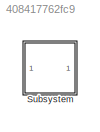
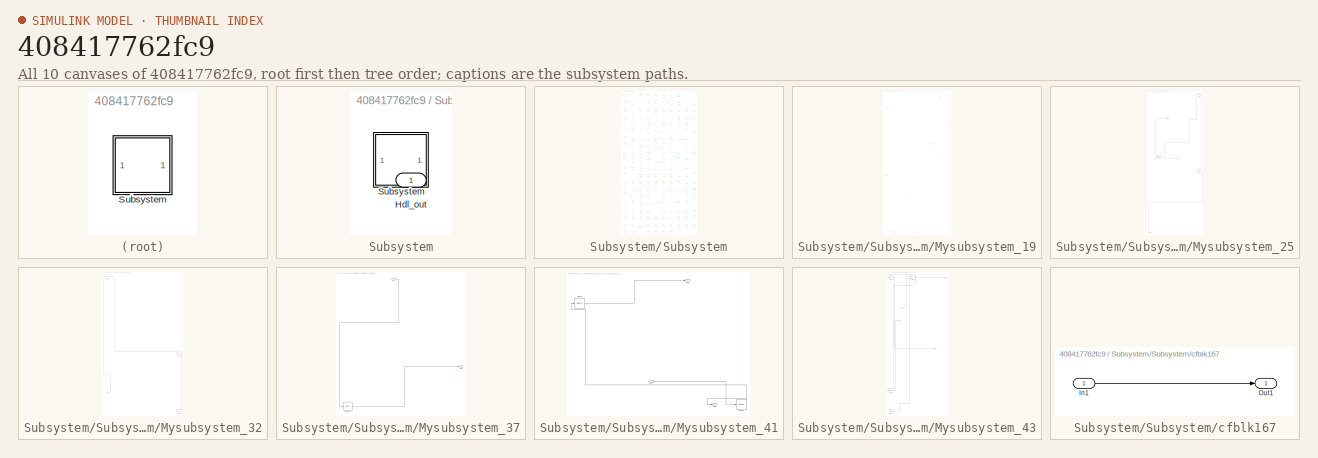
[diagram: thumbnail index - all 10 canvases of the model, root first then tree order]
MODEL slx_408417762fc9
KIND model
CONFIG AbsTol = auto
CONFIG EnableMultiTasking = off
CONFIG FixedStep = auto
CONFIG MaxStep = auto
CONFIG MinStep = auto
CONFIG RelTol = 1e-3
CONFIG SampleTimeConstraint = Unconstrained
CONFIG SolverName = VariableStepAuto
CONFIG StartTime = 0.0
CONFIG StopTime = 10.0
BLOCK [SubSystem] Subsystem
BLOCK [Outport] Subsystem/Hdl_out
  OutDataTypeStr = uint8
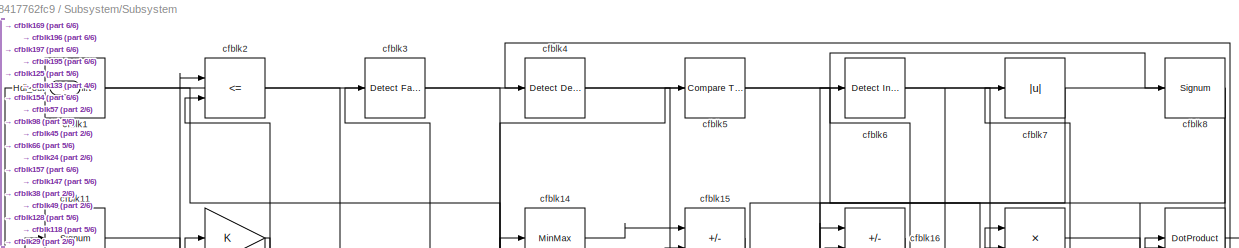
[diagram: Subsystem/Subsystem - part 1/6, full width, top band]
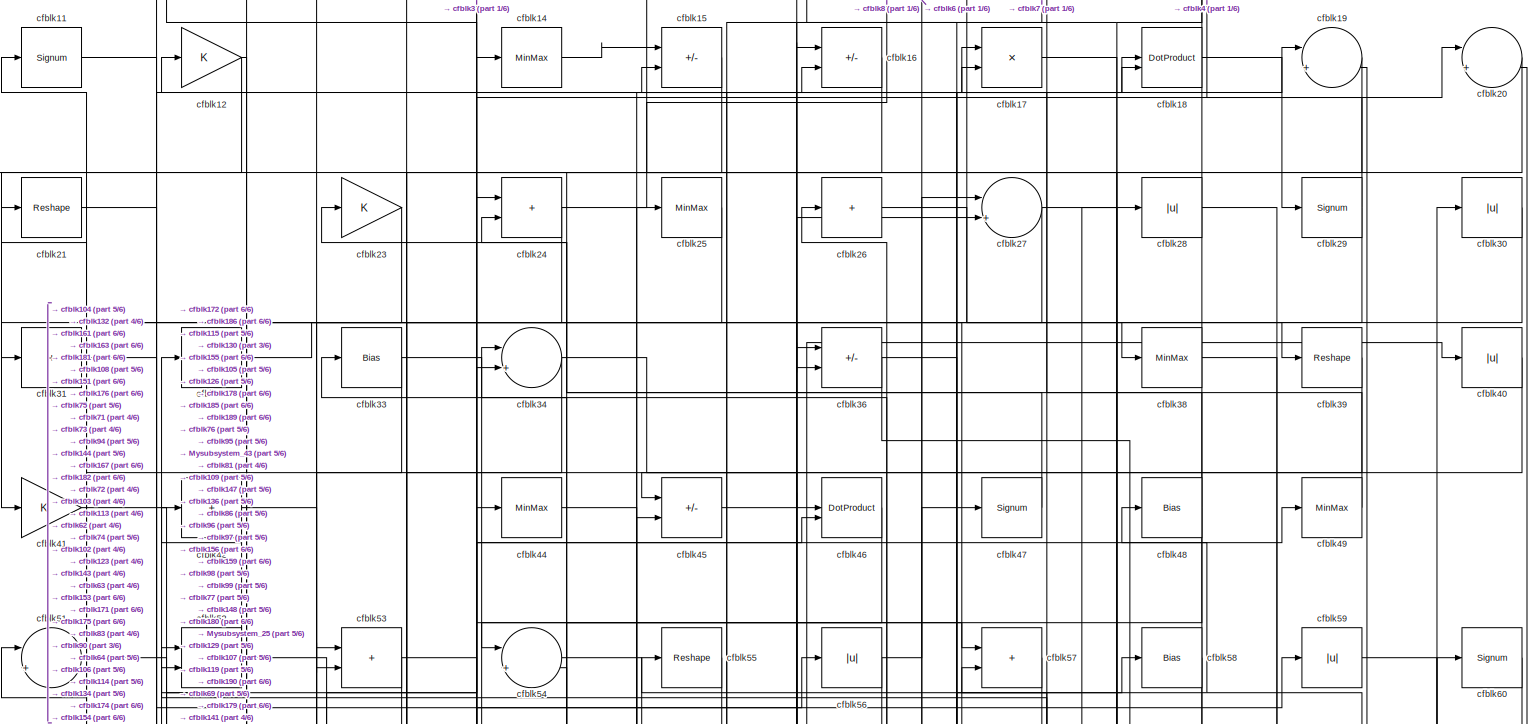
[diagram: Subsystem/Subsystem - part 2/6, full width, top band]
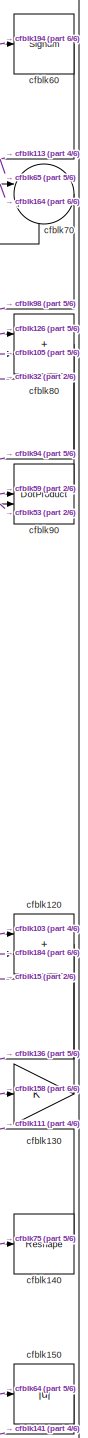
[diagram: Subsystem/Subsystem - part 3/6, middle right region]
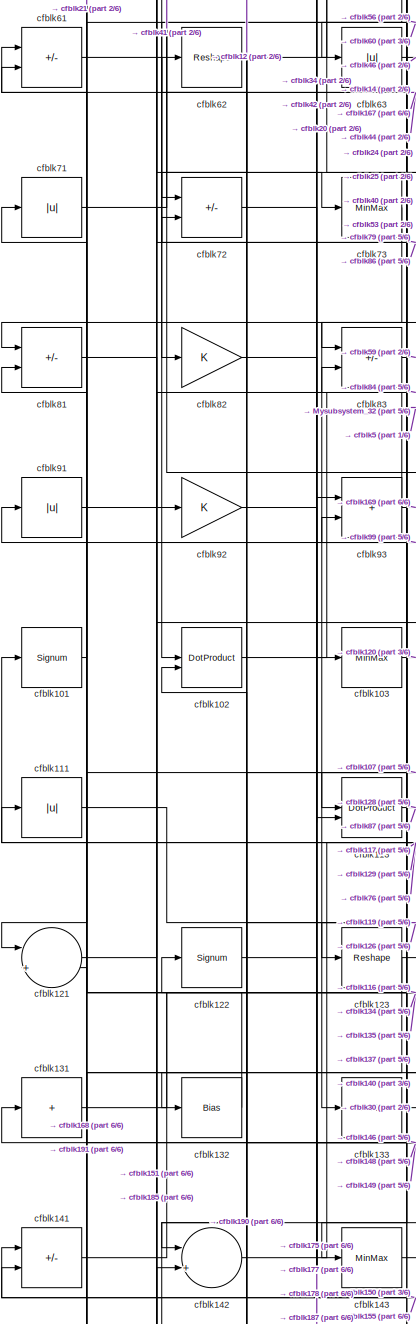
[diagram: Subsystem/Subsystem - part 4/6, middle left region]
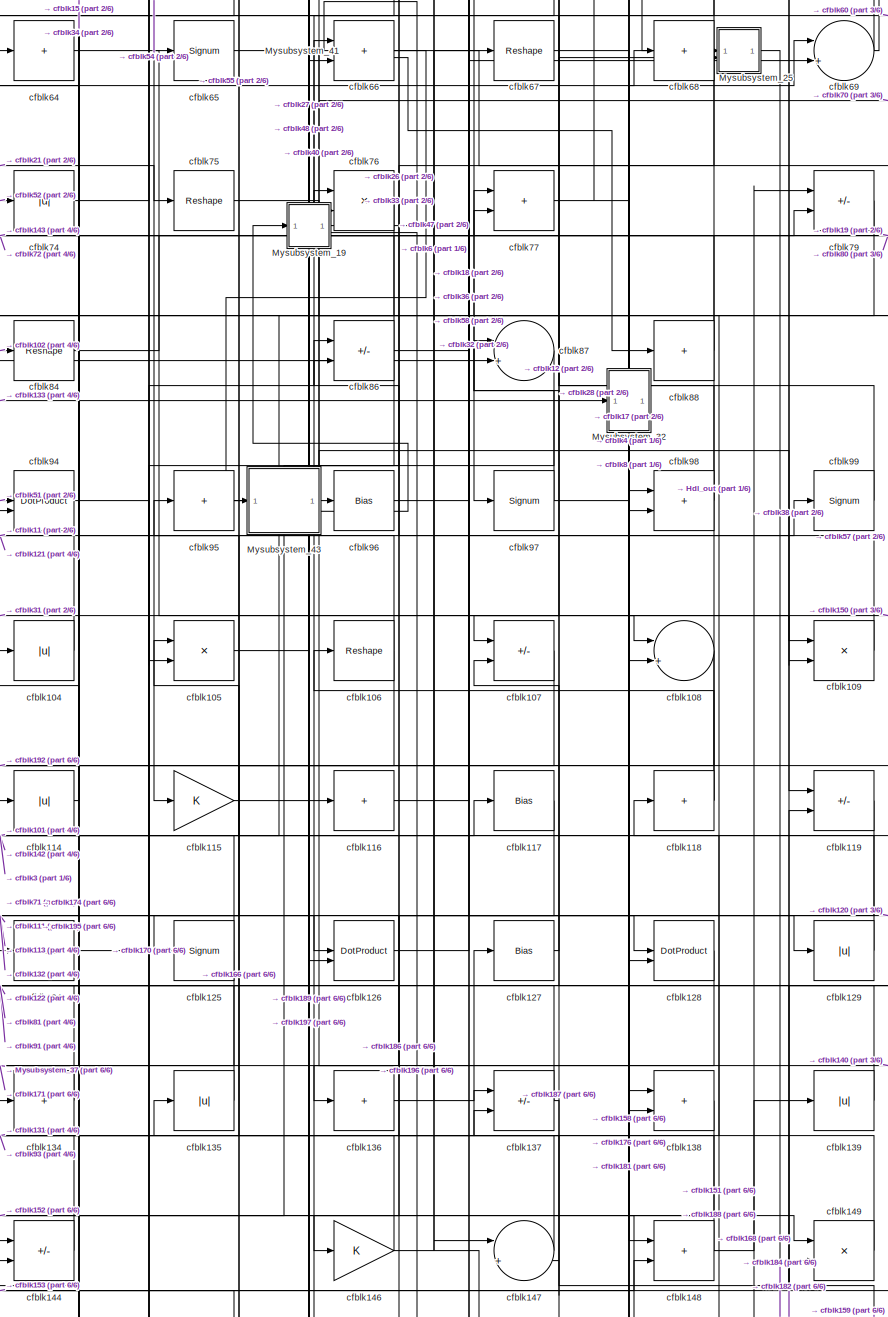
[diagram: Subsystem/Subsystem - part 5/6, central region]
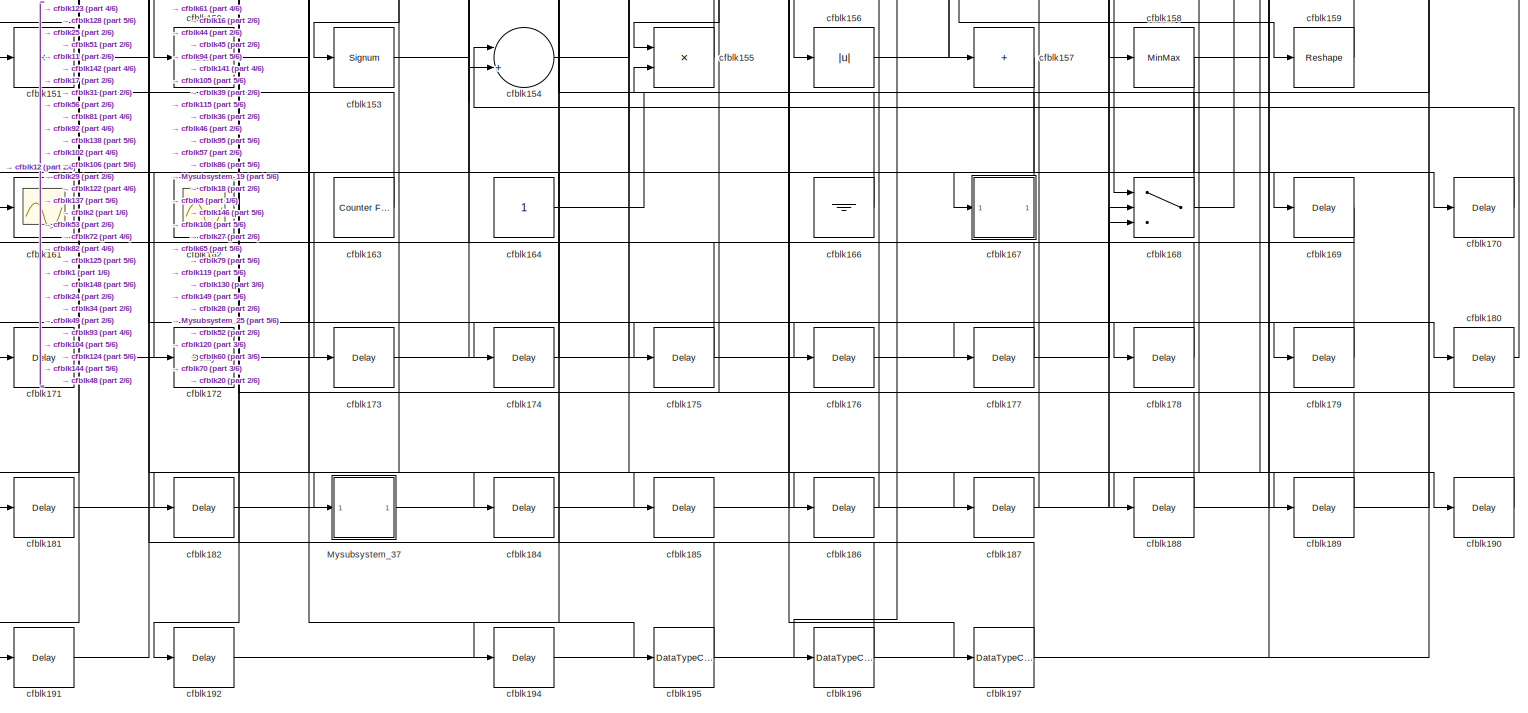
[diagram: Subsystem/Subsystem - part 6/6, full width, bottom band]
BLOCK [SubSystem] Subsystem/Subsystem
BLOCK [Outport] Subsystem/Subsystem/Hdl_out
  OutDataTypeStr = uint8
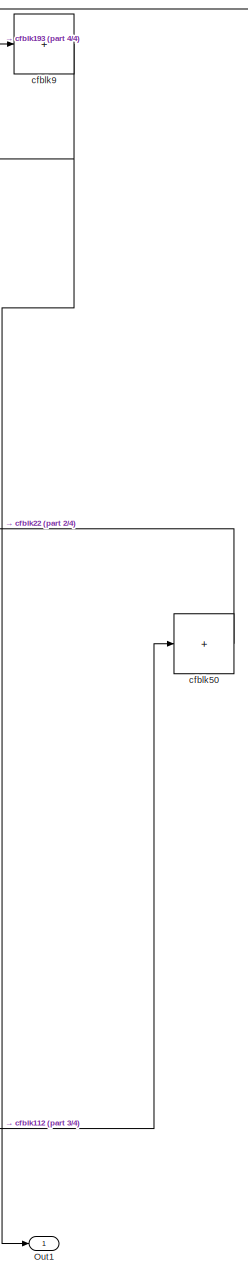
[diagram: Subsystem/Subsystem/Mysubsystem_19 - part 1/4, top right region]
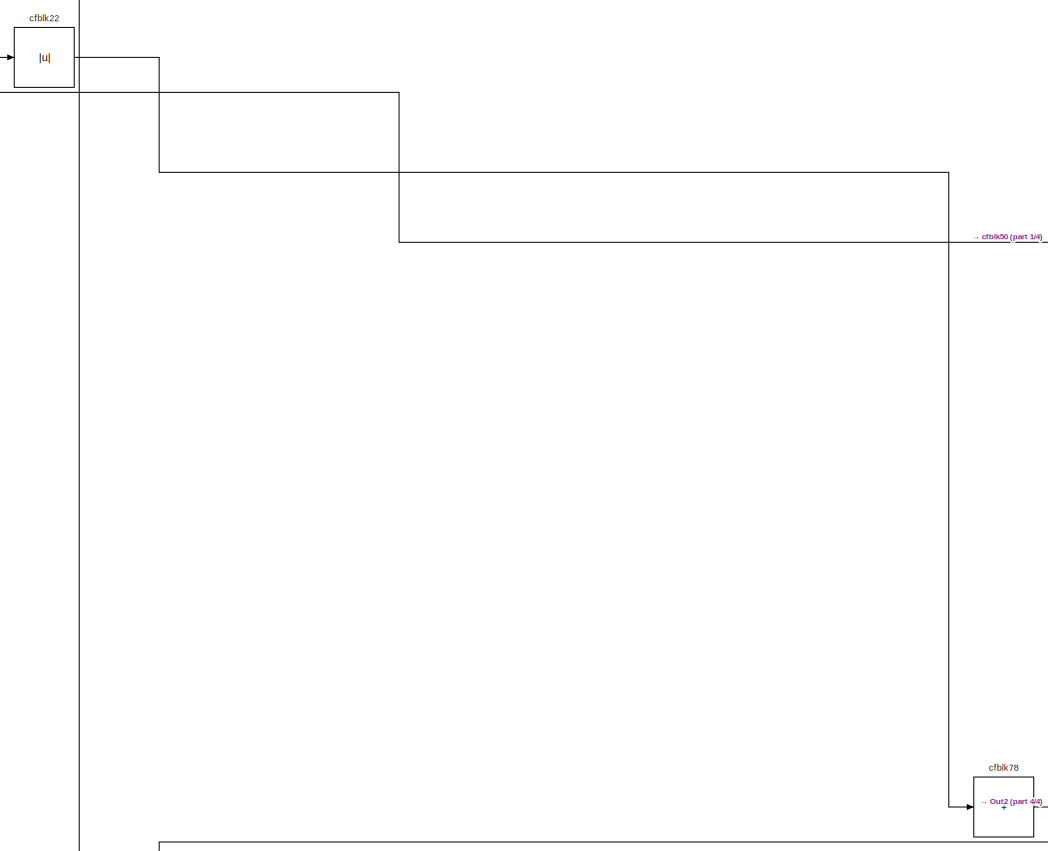
[diagram: Subsystem/Subsystem/Mysubsystem_19 - part 2/4, full width, top band]
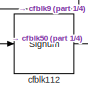
[diagram: Subsystem/Subsystem/Mysubsystem_19 - part 3/4, middle left region]
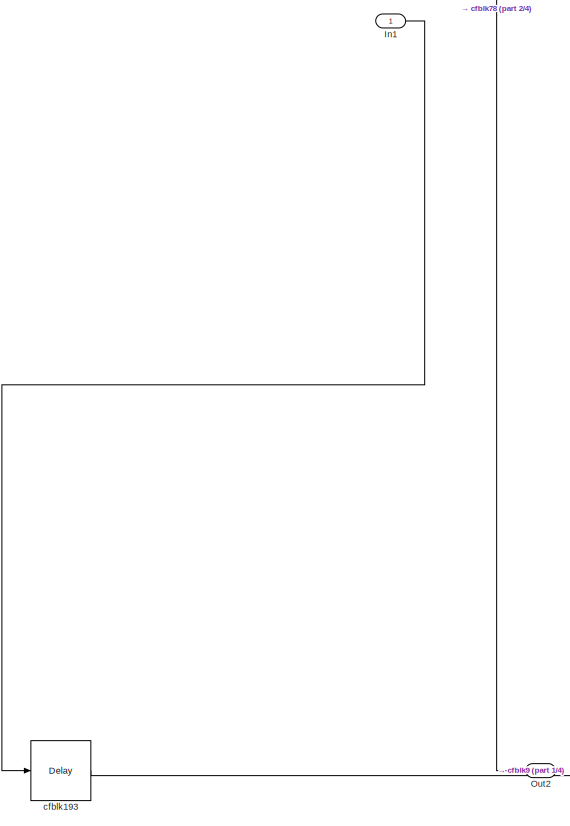
[diagram: Subsystem/Subsystem/Mysubsystem_19 - part 4/4, bottom left region]
BLOCK [SubSystem] Subsystem/Subsystem/Mysubsystem_19
  RTWFcnName = Mysubsystem_19
  RTWFcnNameOpts = User specified
  RTWFileNameOpts = Use function name
  RTWSystemCode = Reusable function
  TreatAsAtomicUnit = on
BLOCK [Inport] Subsystem/Subsystem/Mysubsystem_19/In1
BLOCK [Outport] Subsystem/Subsystem/Mysubsystem_19/Out1
BLOCK [Outport] Subsystem/Subsystem/Mysubsystem_19/Out2
  Port = 2
BLOCK [Signum] Subsystem/Subsystem/Mysubsystem_19/cfblk112
BLOCK [Delay] Subsystem/Subsystem/Mysubsystem_19/cfblk193
  InputPortMap = u0
  SampleTime = 1
BLOCK [Abs] Subsystem/Subsystem/Mysubsystem_19/cfblk22
  SaturateOnIntegerOverflow = off
BLOCK [Sum] Subsystem/Subsystem/Mysubsystem_19/cfblk50
  IconShape = rectangular
  Inputs = +
BLOCK [Sum] Subsystem/Subsystem/Mysubsystem_19/cfblk78
  IconShape = rectangular
  Inputs = +
BLOCK [Sum] Subsystem/Subsystem/Mysubsystem_19/cfblk9
  IconShape = rectangular
  Inputs = +
BLOCK [SubSystem] Subsystem/Subsystem/Mysubsystem_25
  RTWFcnName = Mysubsystem_25
  RTWFcnNameOpts = User specified
  RTWFileNameOpts = Use function name
  RTWSystemCode = Reusable function
  TreatAsAtomicUnit = on
BLOCK [Inport] Subsystem/Subsystem/Mysubsystem_25/In1
BLOCK [Inport] Subsystem/Subsystem/Mysubsystem_25/In2
  Port = 2
BLOCK [Outport] Subsystem/Subsystem/Mysubsystem_25/Out1
BLOCK [Reshape] Subsystem/Subsystem/Mysubsystem_25/cfblk10
BLOCK [Abs] Subsystem/Subsystem/Mysubsystem_25/cfblk110
  SaturateOnIntegerOverflow = off
BLOCK [DotProduct] Subsystem/Subsystem/Mysubsystem_25/cfblk85
  OutDataTypeStr = Inherit: Inherit via internal rule
BLOCK [SubSystem] Subsystem/Subsystem/Mysubsystem_32
  RTWFcnName = Mysubsystem_32
  RTWFcnNameOpts = User specified
  RTWFileNameOpts = Use function name
  RTWSystemCode = Reusable function
  TreatAsAtomicUnit = on
BLOCK [Inport] Subsystem/Subsystem/Mysubsystem_32/In1
BLOCK [Abs] Subsystem/Subsystem/Mysubsystem_32/cfblk100
  SaturateOnIntegerOverflow = off
BLOCK [Abs] Subsystem/Subsystem/Mysubsystem_32/cfblk13
  SaturateOnIntegerOverflow = off
BLOCK [Display] Subsystem/Subsystem/Mysubsystem_32/cfblk160
  Decimation = 1
BLOCK [SubSystem] Subsystem/Subsystem/Mysubsystem_37
  RTWFcnName = Mysubsystem_37
  RTWFcnNameOpts = User specified
  RTWFileNameOpts = Use function name
  RTWSystemCode = Reusable function
  TreatAsAtomicUnit = on
BLOCK [Inport] Subsystem/Subsystem/Mysubsystem_37/In1
BLOCK [Outport] Subsystem/Subsystem/Mysubsystem_37/Out1
BLOCK [Delay] Subsystem/Subsystem/Mysubsystem_37/cfblk183
  InputPortMap = u0
  SampleTime = 1
BLOCK [SubSystem] Subsystem/Subsystem/Mysubsystem_41
  RTWFcnName = Mysubsystem_41
  RTWFcnNameOpts = User specified
  RTWFileNameOpts = Use function name
  RTWSystemCode = Reusable function
  TreatAsAtomicUnit = on
BLOCK [Inport] Subsystem/Subsystem/Mysubsystem_41/In1
BLOCK [Outport] Subsystem/Subsystem/Mysubsystem_41/Out1
BLOCK [Outport] Subsystem/Subsystem/Mysubsystem_41/Out2
  Port = 2
BLOCK [Signum] Subsystem/Subsystem/Mysubsystem_41/cfblk43
BLOCK [Signum] Subsystem/Subsystem/Mysubsystem_41/cfblk89
BLOCK [SubSystem] Subsystem/Subsystem/Mysubsystem_43
  RTWFcnName = Mysubsystem_43
  RTWFcnNameOpts = User specified
  RTWFileNameOpts = Use function name
  RTWSystemCode = Reusable function
  TreatAsAtomicUnit = on
BLOCK [Inport] Subsystem/Subsystem/Mysubsystem_43/In1
BLOCK [Outport] Subsystem/Subsystem/Mysubsystem_43/Out1
BLOCK [Outport] Subsystem/Subsystem/Mysubsystem_43/Out2
  Port = 2
BLOCK [Outport] Subsystem/Subsystem/Mysubsystem_43/Out3
  Port = 3
BLOCK [Reshape] Subsystem/Subsystem/Mysubsystem_43/cfblk145
BLOCK [Reference] Subsystem/Subsystem/Mysubsystem_43/cfblk165  REF=hdlsllib/Sources/Counter
Limited
  SourceBlock = hdlsllib/Sources/Counter\nLimited
  SourceType = Counter Limited
BLOCK [MinMax] Subsystem/Subsystem/Mysubsystem_43/cfblk35
BLOCK [Product] Subsystem/Subsystem/Mysubsystem_43/cfblk37
  Inputs = */
  RndMeth = Zero
  SaturateOnIntegerOverflow = on
BLOCK [Reference] Subsystem/Subsystem/cfblk1  REF=hdlsllib/Logic and Bit
Operations/Bit Shift
  SourceBlock = hdlsllib/Logic and Bit\nOperations/Bit Shift
  SourceType = Bit Shift
BLOCK [Signum] Subsystem/Subsystem/cfblk101
BLOCK [DotProduct] Subsystem/Subsystem/cfblk102
  OutDataTypeStr = uint8
BLOCK [MinMax] Subsystem/Subsystem/cfblk103
  OutDataTypeStr = uint8
BLOCK [Abs] Subsystem/Subsystem/cfblk104
  OutDataTypeStr = uint8
  SaturateOnIntegerOverflow = off
BLOCK [Product] Subsystem/Subsystem/cfblk105
  Inputs = */
  OutDataTypeStr = uint8
  RndMeth = Zero
  SaturateOnIntegerOverflow = on
BLOCK [Reshape] Subsystem/Subsystem/cfblk106
BLOCK [Sum] Subsystem/Subsystem/cfblk107
  IconShape = rectangular
  Inputs = +-
  OutDataTypeStr = uint8
BLOCK [Sum] Subsystem/Subsystem/cfblk108
  Inputs = |++
  OutDataTypeStr = uint8
BLOCK [Product] Subsystem/Subsystem/cfblk109
  Inputs = */
  OutDataTypeStr = uint8
  RndMeth = Zero
  SaturateOnIntegerOverflow = on
BLOCK [Signum] Subsystem/Subsystem/cfblk11
BLOCK [Abs] Subsystem/Subsystem/cfblk111
  OutDataTypeStr = uint8
  SaturateOnIntegerOverflow = off
BLOCK [DotProduct] Subsystem/Subsystem/cfblk113
  OutDataTypeStr = uint8
BLOCK [Abs] Subsystem/Subsystem/cfblk114
  OutDataTypeStr = uint8
  SaturateOnIntegerOverflow = off
BLOCK [Gain] Subsystem/Subsystem/cfblk115
  OutDataTypeStr = uint8
BLOCK [Sum] Subsystem/Subsystem/cfblk116
  IconShape = rectangular
  Inputs = +
  OutDataTypeStr = uint8
BLOCK [Bias] Subsystem/Subsystem/cfblk117
  Bias = 0.0
  SaturateOnIntegerOverflow = off
BLOCK [Sum] Subsystem/Subsystem/cfblk118
  IconShape = rectangular
  Inputs = +
  OutDataTypeStr = uint8
BLOCK [Sum] Subsystem/Subsystem/cfblk119
  IconShape = rectangular
  Inputs = +-
  OutDataTypeStr = uint8
BLOCK [Gain] Subsystem/Subsystem/cfblk12
  OutDataTypeStr = uint8
BLOCK [Sum] Subsystem/Subsystem/cfblk120
  IconShape = rectangular
  OutDataTypeStr = uint8
BLOCK [Sum] Subsystem/Subsystem/cfblk121
  Inputs = |++
  OutDataTypeStr = uint8
BLOCK [Signum] Subsystem/Subsystem/cfblk122
BLOCK [Reshape] Subsystem/Subsystem/cfblk123
BLOCK [MinMax] Subsystem/Subsystem/cfblk124
  OutDataTypeStr = uint8
BLOCK [Signum] Subsystem/Subsystem/cfblk125
BLOCK [DotProduct] Subsystem/Subsystem/cfblk126
  OutDataTypeStr = uint8
BLOCK [Bias] Subsystem/Subsystem/cfblk127
  Bias = 0.0
  SaturateOnIntegerOverflow = off
BLOCK [DotProduct] Subsystem/Subsystem/cfblk128
  OutDataTypeStr = uint8
BLOCK [Abs] Subsystem/Subsystem/cfblk129
  OutDataTypeStr = uint8
  SaturateOnIntegerOverflow = off
BLOCK [Gain] Subsystem/Subsystem/cfblk130
  OutDataTypeStr = uint8
BLOCK [Sum] Subsystem/Subsystem/cfblk131
  IconShape = rectangular
  Inputs = +
  OutDataTypeStr = uint8
BLOCK [Bias] Subsystem/Subsystem/cfblk132
  Bias = 0.0
  SaturateOnIntegerOverflow = off
BLOCK [MinMax] Subsystem/Subsystem/cfblk133
  OutDataTypeStr = uint8
BLOCK [Sum] Subsystem/Subsystem/cfblk134
  IconShape = rectangular
  Inputs = +
  OutDataTypeStr = uint8
BLOCK [Abs] Subsystem/Subsystem/cfblk135
  OutDataTypeStr = uint8
  SaturateOnIntegerOverflow = off
BLOCK [Sum] Subsystem/Subsystem/cfblk136
  IconShape = rectangular
  Inputs = +
  OutDataTypeStr = uint8
BLOCK [Sum] Subsystem/Subsystem/cfblk137
  IconShape = rectangular
  Inputs = +-
  OutDataTypeStr = uint8
BLOCK [Sum] Subsystem/Subsystem/cfblk138
  IconShape = rectangular
  OutDataTypeStr = uint8
BLOCK [Abs] Subsystem/Subsystem/cfblk139
  OutDataTypeStr = uint8
  SaturateOnIntegerOverflow = off
BLOCK [MinMax] Subsystem/Subsystem/cfblk14
  OutDataTypeStr = uint8
BLOCK [Reshape] Subsystem/Subsystem/cfblk140
BLOCK [Sum] Subsystem/Subsystem/cfblk141
  IconShape = rectangular
  Inputs = +-
  OutDataTypeStr = uint8
BLOCK [Sum] Subsystem/Subsystem/cfblk142
  Inputs = |++
  OutDataTypeStr = uint8
BLOCK [MinMax] Subsystem/Subsystem/cfblk143
  OutDataTypeStr = uint8
BLOCK [Sum] Subsystem/Subsystem/cfblk144
  IconShape = rectangular
  Inputs = +-
  OutDataTypeStr = uint8
BLOCK [Gain] Subsystem/Subsystem/cfblk146
  OutDataTypeStr = uint8
BLOCK [Sum] Subsystem/Subsystem/cfblk147
  Inputs = |++
  OutDataTypeStr = uint8
BLOCK [Sum] Subsystem/Subsystem/cfblk148
  IconShape = rectangular
  OutDataTypeStr = uint8
BLOCK [Product] Subsystem/Subsystem/cfblk149
  Inputs = */
  OutDataTypeStr = uint8
  RndMeth = Zero
  SaturateOnIntegerOverflow = on
BLOCK [Sum] Subsystem/Subsystem/cfblk15
  IconShape = rectangular
  Inputs = +-
  OutDataTypeStr = uint8
BLOCK [Abs] Subsystem/Subsystem/cfblk150
  OutDataTypeStr = uint8
  SaturateOnIntegerOverflow = off
BLOCK [Sum] Subsystem/Subsystem/cfblk151
  IconShape = rectangular
  Inputs = +
  OutDataTypeStr = uint8
BLOCK [Bias] Subsystem/Subsystem/cfblk152
  Bias = 0.0
  SaturateOnIntegerOverflow = off
BLOCK [Signum] Subsystem/Subsystem/cfblk153
BLOCK [Sum] Subsystem/Subsystem/cfblk154
  Inputs = |++
  OutDataTypeStr = uint8
BLOCK [Product] Subsystem/Subsystem/cfblk155
  Inputs = */
  OutDataTypeStr = uint8
  RndMeth = Zero
  SaturateOnIntegerOverflow = on
BLOCK [Abs] Subsystem/Subsystem/cfblk156
  OutDataTypeStr = uint8
  SaturateOnIntegerOverflow = off
BLOCK [Sum] Subsystem/Subsystem/cfblk157
  IconShape = rectangular
  Inputs = +
  OutDataTypeStr = uint8
BLOCK [MinMax] Subsystem/Subsystem/cfblk158
  OutDataTypeStr = uint8
BLOCK [Reshape] Subsystem/Subsystem/cfblk159
BLOCK [Sum] Subsystem/Subsystem/cfblk16
  IconShape = rectangular
  Inputs = +-
  OutDataTypeStr = uint8
BLOCK [Scope] Subsystem/Subsystem/cfblk161
  Floating = off
  NumInputPorts = 1
  ScopeSpecificationString = Simulink.scopes.TimeScopeBlockCfg('CurrentConfiguration', extmgr.ConfigurationSet(extmgr.Configuration('Core','General UI',true),extmgr.Configuration('Core','Source UI',true),extmgr.Configuration('Sources','WiredSimulink',true,'DataLoggingVariableName','ScopeData1','DataLoggingSaveFormat','Array','DataLoggingLimitDataPoints',true,'DataLoggingDecimation','1'),extmgr.Configuration('Visuals','Time Do...<+868ch>
BLOCK [Scope] Subsystem/Subsystem/cfblk162
  Floating = on
  NumInputPorts = 1
  ScopeSpecificationString = Simulink.scopes.TimeScopeBlockCfg('CurrentConfiguration', extmgr.ConfigurationSet(extmgr.Configuration('Core','General UI',true,'FigureColor',[0.156862745098039 0.156862745098039 0.156862745098039]),extmgr.Configuration('Core','Source UI',true),extmgr.Configuration('Sources','WiredSimulink',true,'DataLoggingSaveFormat','StructureWithTime','DataLoggingLimitDataPoints',true,'DataLoggingDecimation','...<+2674ch>
BLOCK [Reference] Subsystem/Subsystem/cfblk163  REF=hdlsllib/Sources/Counter
Free-Running
  SourceBlock = hdlsllib/Sources/Counter\nFree-Running
  SourceType = Counter Free-Running
BLOCK [Constant] Subsystem/Subsystem/cfblk164
  OutDataTypeStr = uint8
  SampleTime = -1
BLOCK [Ground] Subsystem/Subsystem/cfblk166
BLOCK [SubSystem] Subsystem/Subsystem/cfblk167
  LibrarySourceBlock = hdlsllib/Ports &\nSubsystems/Subsystem
BLOCK [Inport] Subsystem/Subsystem/cfblk167/In1
BLOCK [Outport] Subsystem/Subsystem/cfblk167/Out1
BLOCK [Switch] Subsystem/Subsystem/cfblk168
  InputSameDT = off
  OutDataTypeStr = uint8
  SaturateOnIntegerOverflow = off
BLOCK [Delay] Subsystem/Subsystem/cfblk169
  InputPortMap = u0
  SampleTime = 1
BLOCK [Product] Subsystem/Subsystem/cfblk17
  Inputs = */
  OutDataTypeStr = uint8
  RndMeth = Zero
  SaturateOnIntegerOverflow = on
BLOCK [Delay] Subsystem/Subsystem/cfblk170
  InputPortMap = u0
  SampleTime = 1
BLOCK [Delay] Subsystem/Subsystem/cfblk171
  InputPortMap = u0
  SampleTime = 1
BLOCK [Delay] Subsystem/Subsystem/cfblk172
  InputPortMap = u0
  SampleTime = 1
BLOCK [Delay] Subsystem/Subsystem/cfblk173
  InputPortMap = u0
  SampleTime = 1
BLOCK [Delay] Subsystem/Subsystem/cfblk174
  InputPortMap = u0
  SampleTime = 1
BLOCK [Delay] Subsystem/Subsystem/cfblk175
  InputPortMap = u0
  SampleTime = 1
BLOCK [Delay] Subsystem/Subsystem/cfblk176
  InputPortMap = u0
  SampleTime = 1
BLOCK [Delay] Subsystem/Subsystem/cfblk177
  InputPortMap = u0
  SampleTime = 1
BLOCK [Delay] Subsystem/Subsystem/cfblk178
  InputPortMap = u0
  SampleTime = 1
BLOCK [Delay] Subsystem/Subsystem/cfblk179
  InputPortMap = u0
  SampleTime = 1
BLOCK [DotProduct] Subsystem/Subsystem/cfblk18
  OutDataTypeStr = uint8
BLOCK [Delay] Subsystem/Subsystem/cfblk180
  InputPortMap = u0
  SampleTime = 1
BLOCK [Delay] Subsystem/Subsystem/cfblk181
  InputPortMap = u0
  SampleTime = 1
BLOCK [Delay] Subsystem/Subsystem/cfblk182
  InputPortMap = u0
  SampleTime = 1
BLOCK [Delay] Subsystem/Subsystem/cfblk184
  InputPortMap = u0
  SampleTime = 1
BLOCK [Delay] Subsystem/Subsystem/cfblk185
  InputPortMap = u0
  SampleTime = 1
BLOCK [Delay] Subsystem/Subsystem/cfblk186
  InputPortMap = u0
  SampleTime = 1
BLOCK [Delay] Subsystem/Subsystem/cfblk187
  InputPortMap = u0
  SampleTime = 1
BLOCK [Delay] Subsystem/Subsystem/cfblk188
  InputPortMap = u0
  SampleTime = 1
BLOCK [Delay] Subsystem/Subsystem/cfblk189
  InputPortMap = u0
  SampleTime = 1
BLOCK [Sum] Subsystem/Subsystem/cfblk19
  Inputs = |++
  OutDataTypeStr = uint8
BLOCK [Delay] Subsystem/Subsystem/cfblk190
  InputPortMap = u0
  SampleTime = 1
BLOCK [Delay] Subsystem/Subsystem/cfblk191
  InputPortMap = u0
  SampleTime = 1
BLOCK [Delay] Subsystem/Subsystem/cfblk192
  InputPortMap = u0
  SampleTime = 1
BLOCK [Delay] Subsystem/Subsystem/cfblk194
  InputPortMap = u0
  SampleTime = 1
BLOCK [DataTypeConversion] Subsystem/Subsystem/cfblk195
  OutDataTypeStr = uint8
  RndMeth = Floor
  SaturateOnIntegerOverflow = off
BLOCK [DataTypeConversion] Subsystem/Subsystem/cfblk196
  OutDataTypeStr = uint8
  RndMeth = Floor
  SaturateOnIntegerOverflow = off
BLOCK [DataTypeConversion] Subsystem/Subsystem/cfblk197
  OutDataTypeStr = uint8
  RndMeth = Floor
  SaturateOnIntegerOverflow = off
BLOCK [RelationalOperator] Subsystem/Subsystem/cfblk2
  InputSameDT = off
  Operator = <=
  OutDataTypeStr = boolean
BLOCK [Sum] Subsystem/Subsystem/cfblk20
  Inputs = |++
  OutDataTypeStr = uint8
BLOCK [Reshape] Subsystem/Subsystem/cfblk21
BLOCK [Gain] Subsystem/Subsystem/cfblk23
  OutDataTypeStr = uint8
BLOCK [Sum] Subsystem/Subsystem/cfblk24
  IconShape = rectangular
  OutDataTypeStr = uint8
BLOCK [MinMax] Subsystem/Subsystem/cfblk25
  OutDataTypeStr = uint8
BLOCK [Sum] Subsystem/Subsystem/cfblk26
  IconShape = rectangular
  Inputs = +
  OutDataTypeStr = uint8
BLOCK [Sum] Subsystem/Subsystem/cfblk27
  Inputs = |++
  OutDataTypeStr = uint8
BLOCK [Abs] Subsystem/Subsystem/cfblk28
  OutDataTypeStr = uint8
  SaturateOnIntegerOverflow = off
BLOCK [Signum] Subsystem/Subsystem/cfblk29
BLOCK [Reference] Subsystem/Subsystem/cfblk3  REF=hdlsllib/Logic and Bit
Operations/Detect Fall
Nonpositive
  SourceBlock = hdlsllib/Logic and Bit\nOperations/Detect Fall\nNonpositive
  SourceType = Detect Fall Nonpositive
BLOCK [Abs] Subsystem/Subsystem/cfblk30
  OutDataTypeStr = uint8
  SaturateOnIntegerOverflow = off
BLOCK [Sum] Subsystem/Subsystem/cfblk31
  IconShape = rectangular
  Inputs = +
  OutDataTypeStr = uint8
BLOCK [Bias] Subsystem/Subsystem/cfblk32
  Bias = 0.0
  SaturateOnIntegerOverflow = off
BLOCK [Bias] Subsystem/Subsystem/cfblk33
  Bias = 0.0
  SaturateOnIntegerOverflow = off
BLOCK [Sum] Subsystem/Subsystem/cfblk34
  Inputs = |++
  OutDataTypeStr = uint8
BLOCK [Sum] Subsystem/Subsystem/cfblk36
  IconShape = rectangular
  Inputs = +-
  OutDataTypeStr = uint8
BLOCK [MinMax] Subsystem/Subsystem/cfblk38
  OutDataTypeStr = uint8
BLOCK [Reshape] Subsystem/Subsystem/cfblk39
BLOCK [Reference] Subsystem/Subsystem/cfblk4  REF=simulink/Logic and Bit
Operations/Detect
Decrease
  LibrarySourceBlock = hdlsllib/Logic and Bit\nOperations/Detect\nDecrease
  SourceBlock = simulink/Logic and Bit\nOperations/Detect\nDecrease
  SourceType = Detect Decrease
BLOCK [Abs] Subsystem/Subsystem/cfblk40
  OutDataTypeStr = uint8
  SaturateOnIntegerOverflow = off
BLOCK [Gain] Subsystem/Subsystem/cfblk41
  OutDataTypeStr = uint8
BLOCK [Sum] Subsystem/Subsystem/cfblk42
  IconShape = rectangular
  Inputs = +
  OutDataTypeStr = uint8
BLOCK [MinMax] Subsystem/Subsystem/cfblk44
  OutDataTypeStr = uint8
BLOCK [Sum] Subsystem/Subsystem/cfblk45
  IconShape = rectangular
  Inputs = +-
  OutDataTypeStr = uint8
BLOCK [DotProduct] Subsystem/Subsystem/cfblk46
  OutDataTypeStr = uint8
BLOCK [Signum] Subsystem/Subsystem/cfblk47
BLOCK [Bias] Subsystem/Subsystem/cfblk48
  Bias = 0.0
  SaturateOnIntegerOverflow = off
BLOCK [MinMax] Subsystem/Subsystem/cfblk49
  OutDataTypeStr = uint8
BLOCK [Reference] Subsystem/Subsystem/cfblk5  REF=hdlsllib/Logic and Bit
Operations/Compare
To Constant
  SourceBlock = hdlsllib/Logic and Bit\nOperations/Compare\nTo Constant
  SourceType = Compare To Constant
BLOCK [Sum] Subsystem/Subsystem/cfblk51
  Inputs = |++
  OutDataTypeStr = uint8
BLOCK [Sum] Subsystem/Subsystem/cfblk52
  IconShape = rectangular
  OutDataTypeStr = uint8
BLOCK [Sum] Subsystem/Subsystem/cfblk53
  IconShape = rectangular
  OutDataTypeStr = uint8
BLOCK [Sum] Subsystem/Subsystem/cfblk54
  Inputs = |++
  OutDataTypeStr = uint8
BLOCK [Reshape] Subsystem/Subsystem/cfblk55
BLOCK [Abs] Subsystem/Subsystem/cfblk56
  OutDataTypeStr = uint8
  SaturateOnIntegerOverflow = off
BLOCK [Sum] Subsystem/Subsystem/cfblk57
  IconShape = rectangular
  OutDataTypeStr = uint8
BLOCK [Bias] Subsystem/Subsystem/cfblk58
  Bias = 0.0
  SaturateOnIntegerOverflow = off
BLOCK [Abs] Subsystem/Subsystem/cfblk59
  OutDataTypeStr = uint8
  SaturateOnIntegerOverflow = off
BLOCK [Reference] Subsystem/Subsystem/cfblk6  REF=simulink/Logic and Bit
Operations/Detect
Increase
  LibrarySourceBlock = hdlsllib/Logic and Bit\nOperations/Detect\nIncrease
  SourceBlock = simulink/Logic and Bit\nOperations/Detect\nIncrease
  SourceType = Detect Increase
BLOCK [Signum] Subsystem/Subsystem/cfblk60
BLOCK [Sum] Subsystem/Subsystem/cfblk61
  IconShape = rectangular
  Inputs = +-
  OutDataTypeStr = uint8
BLOCK [Reshape] Subsystem/Subsystem/cfblk62
BLOCK [Abs] Subsystem/Subsystem/cfblk63
  OutDataTypeStr = uint8
  SaturateOnIntegerOverflow = off
BLOCK [Sum] Subsystem/Subsystem/cfblk64
  IconShape = rectangular
  Inputs = +
  OutDataTypeStr = uint8
BLOCK [Signum] Subsystem/Subsystem/cfblk65
BLOCK [Sum] Subsystem/Subsystem/cfblk66
  IconShape = rectangular
  OutDataTypeStr = uint8
BLOCK [Reshape] Subsystem/Subsystem/cfblk67
BLOCK [Sum] Subsystem/Subsystem/cfblk68
  IconShape = rectangular
  Inputs = +
  OutDataTypeStr = uint8
BLOCK [Sum] Subsystem/Subsystem/cfblk69
  Inputs = |++
  OutDataTypeStr = uint8
BLOCK [Abs] Subsystem/Subsystem/cfblk7
  OutDataTypeStr = uint8
  SaturateOnIntegerOverflow = off
BLOCK [Sum] Subsystem/Subsystem/cfblk70
  Inputs = |++
  OutDataTypeStr = uint8
BLOCK [Abs] Subsystem/Subsystem/cfblk71
  OutDataTypeStr = uint8
  SaturateOnIntegerOverflow = off
BLOCK [Sum] Subsystem/Subsystem/cfblk72
  IconShape = rectangular
  Inputs = +-
  OutDataTypeStr = uint8
BLOCK [MinMax] Subsystem/Subsystem/cfblk73
  OutDataTypeStr = uint8
BLOCK [Abs] Subsystem/Subsystem/cfblk74
  OutDataTypeStr = uint8
  SaturateOnIntegerOverflow = off
BLOCK [Reshape] Subsystem/Subsystem/cfblk75
BLOCK [Product] Subsystem/Subsystem/cfblk76
  Inputs = */
  OutDataTypeStr = uint8
  RndMeth = Zero
  SaturateOnIntegerOverflow = on
BLOCK [Sum] Subsystem/Subsystem/cfblk77
  IconShape = rectangular
  OutDataTypeStr = uint8
BLOCK [Sum] Subsystem/Subsystem/cfblk79
  IconShape = rectangular
  Inputs = +-
  OutDataTypeStr = uint8
BLOCK [Signum] Subsystem/Subsystem/cfblk8
BLOCK [Sum] Subsystem/Subsystem/cfblk80
  IconShape = rectangular
  OutDataTypeStr = uint8
BLOCK [Sum] Subsystem/Subsystem/cfblk81
  IconShape = rectangular
  Inputs = +-
  OutDataTypeStr = uint8
BLOCK [Gain] Subsystem/Subsystem/cfblk82
  OutDataTypeStr = uint8
BLOCK [Sum] Subsystem/Subsystem/cfblk83
  IconShape = rectangular
  Inputs = +-
  OutDataTypeStr = uint8
BLOCK [Reshape] Subsystem/Subsystem/cfblk84
BLOCK [Sum] Subsystem/Subsystem/cfblk86
  IconShape = rectangular
  Inputs = +-
  OutDataTypeStr = uint8
BLOCK [Sum] Subsystem/Subsystem/cfblk87
  Inputs = |++
  OutDataTypeStr = uint8
BLOCK [Sum] Subsystem/Subsystem/cfblk88
  IconShape = rectangular
  Inputs = +
  OutDataTypeStr = uint8
BLOCK [DotProduct] Subsystem/Subsystem/cfblk90
  OutDataTypeStr = uint8
BLOCK [Abs] Subsystem/Subsystem/cfblk91
  OutDataTypeStr = uint8
  SaturateOnIntegerOverflow = off
BLOCK [Gain] Subsystem/Subsystem/cfblk92
  OutDataTypeStr = uint8
BLOCK [Sum] Subsystem/Subsystem/cfblk93
  IconShape = rectangular
  OutDataTypeStr = uint8
BLOCK [DotProduct] Subsystem/Subsystem/cfblk94
  OutDataTypeStr = uint8
BLOCK [Sum] Subsystem/Subsystem/cfblk95
  IconShape = rectangular
  Inputs = +
  OutDataTypeStr = uint8
BLOCK [Bias] Subsystem/Subsystem/cfblk96
  Bias = 0.0
  SaturateOnIntegerOverflow = off
BLOCK [Signum] Subsystem/Subsystem/cfblk97
BLOCK [Sum] Subsystem/Subsystem/cfblk98
  IconShape = rectangular
  OutDataTypeStr = uint8
BLOCK [Signum] Subsystem/Subsystem/cfblk99
LINE Subsystem/Subsystem/Mysubsystem_19/In1:1 -> Subsystem/Subsystem/Mysubsystem_19/cfblk193:1
LINE Subsystem/Subsystem/Mysubsystem_19/cfblk112:1 -> Subsystem/Subsystem/Mysubsystem_19/cfblk50:1
LINE Subsystem/Subsystem/Mysubsystem_19/cfblk193:1 -> Subsystem/Subsystem/Mysubsystem_19/cfblk9:1
LINE Subsystem/Subsystem/Mysubsystem_19/cfblk22:1 -> Subsystem/Subsystem/Mysubsystem_19/cfblk78:1
LINE Subsystem/Subsystem/Mysubsystem_19/cfblk50:1 -> Subsystem/Subsystem/Mysubsystem_19/cfblk22:1
LINE Subsystem/Subsystem/Mysubsystem_19/cfblk78:1 -> Subsystem/Subsystem/Mysubsystem_19/Out2:1
NET Subsystem/Subsystem/Mysubsystem_19/cfblk9:1 -> Subsystem/Subsystem/Mysubsystem_19/Out1:1, Subsystem/Subsystem/Mysubsystem_19/cfblk112:1
LINE Subsystem/Subsystem/Mysubsystem_19:1 -> Subsystem/Subsystem/Mysubsystem_41:1
LINE Subsystem/Subsystem/Mysubsystem_19:2 -> Subsystem/Subsystem/cfblk196:1
LINE Subsystem/Subsystem/Mysubsystem_25/In1:1 -> Subsystem/Subsystem/Mysubsystem_25/cfblk85:1
LINE Subsystem/Subsystem/Mysubsystem_25/In2:1 -> Subsystem/Subsystem/Mysubsystem_25/cfblk85:2
LINE Subsystem/Subsystem/Mysubsystem_25/cfblk10:1 -> Subsystem/Subsystem/Mysubsystem_25/cfblk110:1
LINE Subsystem/Subsystem/Mysubsystem_25/cfblk110:1 -> Subsystem/Subsystem/Mysubsystem_25/Out1:1
LINE Subsystem/Subsystem/Mysubsystem_25/cfblk85:1 -> Subsystem/Subsystem/Mysubsystem_25/cfblk10:1
LINE Subsystem/Subsystem/Mysubsystem_25:1 -> Subsystem/Subsystem/cfblk184:1
LINE Subsystem/Subsystem/Mysubsystem_32/In1:1 -> Subsystem/Subsystem/Mysubsystem_32/cfblk13:1
LINE Subsystem/Subsystem/Mysubsystem_32/cfblk100:1 -> Subsystem/Subsystem/Mysubsystem_32/cfblk160:1
LINE Subsystem/Subsystem/Mysubsystem_32/cfblk13:1 -> Subsystem/Subsystem/Mysubsystem_32/cfblk100:1
LINE Subsystem/Subsystem/Mysubsystem_37/In1:1 -> Subsystem/Subsystem/Mysubsystem_37/cfblk183:1
LINE Subsystem/Subsystem/Mysubsystem_37/cfblk183:1 -> Subsystem/Subsystem/Mysubsystem_37/Out1:1
LINE Subsystem/Subsystem/Mysubsystem_37:1 -> Subsystem/Subsystem/cfblk168:3
LINE Subsystem/Subsystem/Mysubsystem_41/In1:1 -> Subsystem/Subsystem/Mysubsystem_41/cfblk89:1
LINE Subsystem/Subsystem/Mysubsystem_41/cfblk43:1 -> Subsystem/Subsystem/Mysubsystem_41/Out1:1
NET Subsystem/Subsystem/Mysubsystem_41/cfblk89:1 -> Subsystem/Subsystem/Mysubsystem_41/Out2:1, Subsystem/Subsystem/Mysubsystem_41/cfblk43:1
LINE Subsystem/Subsystem/Mysubsystem_41:1 -> Subsystem/Subsystem/Mysubsystem_43:1
LINE Subsystem/Subsystem/Mysubsystem_41:2 -> Subsystem/Subsystem/cfblk88:1
LINE Subsystem/Subsystem/Mysubsystem_43/In1:1 -> Subsystem/Subsystem/Mysubsystem_43/cfblk37:2
LINE Subsystem/Subsystem/Mysubsystem_43/cfblk145:1 -> Subsystem/Subsystem/Mysubsystem_43/Out2:1
LINE Subsystem/Subsystem/Mysubsystem_43/cfblk165:1 -> Subsystem/Subsystem/Mysubsystem_43/cfblk37:1
LINE Subsystem/Subsystem/Mysubsystem_43/cfblk35:1 -> Subsystem/Subsystem/Mysubsystem_43/Out3:1
NET Subsystem/Subsystem/Mysubsystem_43/cfblk37:1 -> Subsystem/Subsystem/Mysubsystem_43/Out1:1, Subsystem/Subsystem/Mysubsystem_43/cfblk145:1, Subsystem/Subsystem/Mysubsystem_43/cfblk35:1
LINE Subsystem/Subsystem/Mysubsystem_43:1 -> Subsystem/Subsystem/cfblk40:1
LINE Subsystem/Subsystem/Mysubsystem_43:2 -> Subsystem/Subsystem/Mysubsystem_19:1
LINE Subsystem/Subsystem/Mysubsystem_43:3 -> Subsystem/Subsystem/cfblk109:1
LINE Subsystem/Subsystem/cfblk101:1 -> Subsystem/Subsystem/cfblk61:2
LINE Subsystem/Subsystem/cfblk102:1 -> Subsystem/Subsystem/cfblk84:1
LINE Subsystem/Subsystem/cfblk103:1 -> Subsystem/Subsystem/cfblk120:1
LINE Subsystem/Subsystem/cfblk104:1 -> Subsystem/Subsystem/cfblk11:1
NET Subsystem/Subsystem/cfblk105:1 -> Subsystem/Subsystem/cfblk19:1, Subsystem/Subsystem/cfblk80:2
NET Subsystem/Subsystem/cfblk106:1 -> Subsystem/Subsystem/cfblk192:1, Subsystem/Subsystem/cfblk54:2
LINE Subsystem/Subsystem/cfblk107:1 -> Subsystem/Subsystem/cfblk121:1
LINE Subsystem/Subsystem/cfblk108:1 -> Subsystem/Subsystem/cfblk125:1
LINE Subsystem/Subsystem/cfblk109:1 -> Subsystem/Subsystem/cfblk33:1
LINE Subsystem/Subsystem/cfblk111:1 -> Subsystem/Subsystem/cfblk126:1
NET Subsystem/Subsystem/cfblk113:1 -> Subsystem/Subsystem/cfblk128:1, Subsystem/Subsystem/cfblk87:2
LINE Subsystem/Subsystem/cfblk114:1 -> Subsystem/Subsystem/cfblk34:1
LINE Subsystem/Subsystem/cfblk115:1 -> Subsystem/Subsystem/cfblk189:1
LINE Subsystem/Subsystem/cfblk116:1 -> Subsystem/Subsystem/cfblk69:2
LINE Subsystem/Subsystem/cfblk117:1 -> Subsystem/Subsystem/cfblk146:1
NET Subsystem/Subsystem/cfblk118:1 -> Subsystem/Subsystem/Hdl_out:1, Subsystem/Subsystem/cfblk106:1
NET Subsystem/Subsystem/cfblk119:1 -> Subsystem/Subsystem/cfblk132:1, Subsystem/Subsystem/cfblk142:1
LINE Subsystem/Subsystem/cfblk11:1 -> Subsystem/Subsystem/cfblk179:1
LINE Subsystem/Subsystem/cfblk120:1 -> Subsystem/Subsystem/cfblk136:1
LINE Subsystem/Subsystem/cfblk121:1 -> Subsystem/Subsystem/cfblk99:1
LINE Subsystem/Subsystem/cfblk122:1 -> Subsystem/Subsystem/cfblk175:1
NET Subsystem/Subsystem/cfblk123:1 -> Subsystem/Subsystem/cfblk168:1, Subsystem/Subsystem/cfblk191:1
LINE Subsystem/Subsystem/cfblk124:1 -> Subsystem/Subsystem/cfblk86:1
NET Subsystem/Subsystem/cfblk125:1 -> Subsystem/Subsystem/Mysubsystem_37:1, Subsystem/Subsystem/cfblk3:1
LINE Subsystem/Subsystem/cfblk126:1 -> Subsystem/Subsystem/cfblk80:1
LINE Subsystem/Subsystem/cfblk127:1 -> Subsystem/Subsystem/cfblk107:2
LINE Subsystem/Subsystem/cfblk128:1 -> Subsystem/Subsystem/cfblk171:1
LINE Subsystem/Subsystem/cfblk129:1 -> Subsystem/Subsystem/cfblk71:1
NET Subsystem/Subsystem/cfblk12:1 -> Subsystem/Subsystem/cfblk167:1, Subsystem/Subsystem/cfblk72:1
LINE Subsystem/Subsystem/cfblk130:1 -> Subsystem/Subsystem/cfblk15:2
LINE Subsystem/Subsystem/cfblk131:1 -> Subsystem/Subsystem/cfblk116:1
LINE Subsystem/Subsystem/cfblk132:1 -> Subsystem/Subsystem/cfblk21:1
NET Subsystem/Subsystem/cfblk133:1 -> Subsystem/Subsystem/Mysubsystem_32:1, Subsystem/Subsystem/cfblk5:1
LINE Subsystem/Subsystem/cfblk134:1 -> Subsystem/Subsystem/cfblk81:2
LINE Subsystem/Subsystem/cfblk135:1 -> Subsystem/Subsystem/cfblk91:1
NET Subsystem/Subsystem/cfblk136:1 -> Subsystem/Subsystem/cfblk127:1, Subsystem/Subsystem/cfblk47:1
NET Subsystem/Subsystem/cfblk137:1 -> Subsystem/Subsystem/cfblk122:1, Subsystem/Subsystem/cfblk147:2
LINE Subsystem/Subsystem/cfblk138:1 -> Subsystem/Subsystem/cfblk152:1
LINE Subsystem/Subsystem/cfblk139:1 -> Subsystem/Subsystem/cfblk87:1
LINE Subsystem/Subsystem/cfblk140:1 -> Subsystem/Subsystem/cfblk111:1
LINE Subsystem/Subsystem/cfblk141:1 -> Subsystem/Subsystem/cfblk30:1
LINE Subsystem/Subsystem/cfblk142:1 -> Subsystem/Subsystem/cfblk117:1
LINE Subsystem/Subsystem/cfblk143:1 -> Subsystem/Subsystem/cfblk76:1
LINE Subsystem/Subsystem/cfblk144:1 -> Subsystem/Subsystem/cfblk52:2
NET Subsystem/Subsystem/cfblk146:1 -> Subsystem/Subsystem/cfblk159:1, Subsystem/Subsystem/cfblk67:1, Subsystem/Subsystem/cfblk93:2
LINE Subsystem/Subsystem/cfblk147:1 -> Subsystem/Subsystem/cfblk26:1
NET Subsystem/Subsystem/cfblk148:1 -> Subsystem/Subsystem/cfblk121:2, Subsystem/Subsystem/cfblk139:1, Subsystem/Subsystem/cfblk95:1
NET Subsystem/Subsystem/cfblk149:1 -> Subsystem/Subsystem/cfblk118:1, Subsystem/Subsystem/cfblk131:1, Subsystem/Subsystem/cfblk135:1
LINE Subsystem/Subsystem/cfblk14:1 -> Subsystem/Subsystem/cfblk15:1
LINE Subsystem/Subsystem/cfblk150:1 -> Subsystem/Subsystem/cfblk141:1
NET Subsystem/Subsystem/cfblk151:1 -> Subsystem/Subsystem/cfblk17:2, Subsystem/Subsystem/cfblk56:1, Subsystem/Subsystem/cfblk92:1
LINE Subsystem/Subsystem/cfblk152:1 -> Subsystem/Subsystem/cfblk137:1
NET Subsystem/Subsystem/cfblk153:1 -> Subsystem/Subsystem/cfblk148:2, Subsystem/Subsystem/cfblk49:1
LINE Subsystem/Subsystem/cfblk154:1 -> Subsystem/Subsystem/cfblk16:2
LINE Subsystem/Subsystem/cfblk155:1 -> Subsystem/Subsystem/cfblk141:2
LINE Subsystem/Subsystem/cfblk156:1 -> Subsystem/Subsystem/cfblk18:1
NET Subsystem/Subsystem/cfblk157:1 -> Subsystem/Subsystem/cfblk172:1, Subsystem/Subsystem/cfblk173:1
NET Subsystem/Subsystem/cfblk158:1 -> Subsystem/Subsystem/cfblk130:1, Subsystem/Subsystem/cfblk194:1
NET Subsystem/Subsystem/cfblk159:1 -> Subsystem/Subsystem/Mysubsystem_25:2, Subsystem/Subsystem/cfblk52:1
LINE Subsystem/Subsystem/cfblk15:1 -> Subsystem/Subsystem/cfblk134:1
LINE Subsystem/Subsystem/cfblk163:1 -> Subsystem/Subsystem/cfblk51:1
LINE Subsystem/Subsystem/cfblk164:1 -> Subsystem/Subsystem/cfblk70:1
LINE Subsystem/Subsystem/cfblk166:1 -> Subsystem/Subsystem/cfblk105:1
LINE Subsystem/Subsystem/cfblk167/In1:1 -> Subsystem/Subsystem/cfblk167/Out1:1
LINE Subsystem/Subsystem/cfblk167:1 -> Subsystem/Subsystem/cfblk61:1
NET Subsystem/Subsystem/cfblk168:1 -> Subsystem/Subsystem/cfblk124:1, Subsystem/Subsystem/cfblk79:1
LINE Subsystem/Subsystem/cfblk169:1 -> Subsystem/Subsystem/cfblk1:1
LINE Subsystem/Subsystem/cfblk16:1 -> Subsystem/Subsystem/cfblk153:1
LINE Subsystem/Subsystem/cfblk170:1 -> Subsystem/Subsystem/cfblk154:1
LINE Subsystem/Subsystem/cfblk171:1 -> Subsystem/Subsystem/cfblk34:2
LINE Subsystem/Subsystem/cfblk172:1 -> Subsystem/Subsystem/cfblk45:2
LINE Subsystem/Subsystem/cfblk173:1 -> Subsystem/Subsystem/cfblk168:2
LINE Subsystem/Subsystem/cfblk174:1 -> Subsystem/Subsystem/cfblk144:2
LINE Subsystem/Subsystem/cfblk175:1 -> Subsystem/Subsystem/cfblk24:1
LINE Subsystem/Subsystem/cfblk176:1 -> Subsystem/Subsystem/cfblk138:1
LINE Subsystem/Subsystem/cfblk177:1 -> Subsystem/Subsystem/cfblk93:1
LINE Subsystem/Subsystem/cfblk178:1 -> Subsystem/Subsystem/cfblk16:1
LINE Subsystem/Subsystem/cfblk179:1 -> Subsystem/Subsystem/cfblk53:1
LINE Subsystem/Subsystem/cfblk17:1 -> Subsystem/Subsystem/cfblk148:1
LINE Subsystem/Subsystem/cfblk180:1 -> Subsystem/Subsystem/cfblk20:2
LINE Subsystem/Subsystem/cfblk181:1 -> Subsystem/Subsystem/cfblk108:2
LINE Subsystem/Subsystem/cfblk182:1 -> Subsystem/Subsystem/cfblk119:2
LINE Subsystem/Subsystem/cfblk184:1 -> Subsystem/Subsystem/cfblk120:2
LINE Subsystem/Subsystem/cfblk185:1 -> Subsystem/Subsystem/cfblk36:1
LINE Subsystem/Subsystem/cfblk186:1 -> Subsystem/Subsystem/cfblk86:2
LINE Subsystem/Subsystem/cfblk187:1 -> Subsystem/Subsystem/cfblk137:2
LINE Subsystem/Subsystem/cfblk188:1 -> Subsystem/Subsystem/cfblk155:2
LINE Subsystem/Subsystem/cfblk189:1 -> Subsystem/Subsystem/cfblk46:1
LINE Subsystem/Subsystem/cfblk18:1 -> Subsystem/Subsystem/cfblk29:1
LINE Subsystem/Subsystem/cfblk190:1 -> Subsystem/Subsystem/cfblk102:2
LINE Subsystem/Subsystem/cfblk191:1 -> Subsystem/Subsystem/cfblk142:2
LINE Subsystem/Subsystem/cfblk192:1 -> Subsystem/Subsystem/cfblk149:2
LINE Subsystem/Subsystem/cfblk194:1 -> Subsystem/Subsystem/cfblk60:1
LINE Subsystem/Subsystem/cfblk195:1 -> Subsystem/Subsystem/cfblk104:1
LINE Subsystem/Subsystem/cfblk196:1 -> Subsystem/Subsystem/cfblk2:1
LINE Subsystem/Subsystem/cfblk197:1 -> Subsystem/Subsystem/cfblk2:2
LINE Subsystem/Subsystem/cfblk19:1 -> Subsystem/Subsystem/cfblk41:1
LINE Subsystem/Subsystem/cfblk1:1 -> Subsystem/Subsystem/cfblk154:2
LINE Subsystem/Subsystem/cfblk20:1 -> Subsystem/Subsystem/cfblk123:1
LINE Subsystem/Subsystem/cfblk21:1 -> Subsystem/Subsystem/cfblk75:1
LINE Subsystem/Subsystem/cfblk23:1 -> Subsystem/Subsystem/cfblk53:2
NET Subsystem/Subsystem/cfblk24:1 -> Subsystem/Subsystem/cfblk63:1, Subsystem/Subsystem/cfblk8:1
NET Subsystem/Subsystem/cfblk25:1 -> Subsystem/Subsystem/cfblk143:1, Subsystem/Subsystem/cfblk161:1
LINE Subsystem/Subsystem/cfblk26:1 -> Subsystem/Subsystem/cfblk39:1
NET Subsystem/Subsystem/cfblk27:1 -> Subsystem/Subsystem/cfblk180:1, Subsystem/Subsystem/cfblk181:1
LINE Subsystem/Subsystem/cfblk28:1 -> Subsystem/Subsystem/cfblk190:1
NET Subsystem/Subsystem/cfblk29:1 -> Subsystem/Subsystem/cfblk182:1, Subsystem/Subsystem/cfblk4:1
LINE Subsystem/Subsystem/cfblk2:1 -> Subsystem/Subsystem/cfblk195:1
NET Subsystem/Subsystem/cfblk30:1 -> Subsystem/Subsystem/cfblk31:1, Subsystem/Subsystem/cfblk36:2
NET Subsystem/Subsystem/cfblk31:1 -> Subsystem/Subsystem/cfblk108:1, Subsystem/Subsystem/cfblk176:1
LINE Subsystem/Subsystem/cfblk32:1 -> Subsystem/Subsystem/cfblk97:1
NET Subsystem/Subsystem/cfblk33:1 -> Subsystem/Subsystem/cfblk51:2, Subsystem/Subsystem/cfblk64:1
NET Subsystem/Subsystem/cfblk34:1 -> Subsystem/Subsystem/cfblk113:2, Subsystem/Subsystem/cfblk126:2
NET Subsystem/Subsystem/cfblk36:1 -> Subsystem/Subsystem/Mysubsystem_25:1, Subsystem/Subsystem/cfblk129:1
LINE Subsystem/Subsystem/cfblk38:1 -> Subsystem/Subsystem/cfblk119:1
LINE Subsystem/Subsystem/cfblk39:1 -> Subsystem/Subsystem/cfblk155:1
LINE Subsystem/Subsystem/cfblk3:1 -> Subsystem/Subsystem/cfblk57:1
LINE Subsystem/Subsystem/cfblk40:1 -> Subsystem/Subsystem/cfblk83:1
LINE Subsystem/Subsystem/cfblk41:1 -> Subsystem/Subsystem/cfblk73:1
LINE Subsystem/Subsystem/cfblk42:1 -> Subsystem/Subsystem/cfblk103:1
LINE Subsystem/Subsystem/cfblk44:1 -> Subsystem/Subsystem/cfblk186:1
LINE Subsystem/Subsystem/cfblk45:1 -> Subsystem/Subsystem/cfblk6:1
LINE Subsystem/Subsystem/cfblk46:1 -> Subsystem/Subsystem/cfblk54:1
LINE Subsystem/Subsystem/cfblk47:1 -> Subsystem/Subsystem/cfblk23:1
NET Subsystem/Subsystem/cfblk48:1 -> Subsystem/Subsystem/cfblk174:1, Subsystem/Subsystem/cfblk24:2, Subsystem/Subsystem/cfblk76:2
LINE Subsystem/Subsystem/cfblk49:1 -> Subsystem/Subsystem/cfblk7:1
LINE Subsystem/Subsystem/cfblk4:1 -> Subsystem/Subsystem/cfblk98:1
LINE Subsystem/Subsystem/cfblk51:1 -> Subsystem/Subsystem/cfblk94:1
NET Subsystem/Subsystem/cfblk52:1 -> Subsystem/Subsystem/cfblk42:1, Subsystem/Subsystem/cfblk74:1
NET Subsystem/Subsystem/cfblk53:1 -> Subsystem/Subsystem/cfblk102:1, Subsystem/Subsystem/cfblk90:2
LINE Subsystem/Subsystem/cfblk54:1 -> Subsystem/Subsystem/cfblk115:1
LINE Subsystem/Subsystem/cfblk55:1 -> Subsystem/Subsystem/cfblk114:1
NET Subsystem/Subsystem/cfblk56:1 -> Subsystem/Subsystem/cfblk27:1, Subsystem/Subsystem/cfblk81:1
LINE Subsystem/Subsystem/cfblk57:1 -> Subsystem/Subsystem/cfblk156:1
LINE Subsystem/Subsystem/cfblk58:1 -> Subsystem/Subsystem/cfblk107:1
LINE Subsystem/Subsystem/cfblk59:1 -> Subsystem/Subsystem/cfblk90:1
LINE Subsystem/Subsystem/cfblk5:1 -> Subsystem/Subsystem/cfblk157:1
NET Subsystem/Subsystem/cfblk60:1 -> Subsystem/Subsystem/cfblk113:1, Subsystem/Subsystem/cfblk65:1
LINE Subsystem/Subsystem/cfblk61:1 -> Subsystem/Subsystem/cfblk82:1
LINE Subsystem/Subsystem/cfblk62:1 -> Subsystem/Subsystem/cfblk20:1
LINE Subsystem/Subsystem/cfblk63:1 -> Subsystem/Subsystem/cfblk46:2
LINE Subsystem/Subsystem/cfblk64:1 -> Subsystem/Subsystem/cfblk150:1
NET Subsystem/Subsystem/cfblk65:1 -> Subsystem/Subsystem/cfblk158:1, Subsystem/Subsystem/cfblk70:2
LINE Subsystem/Subsystem/cfblk66:1 -> Subsystem/Subsystem/cfblk138:2
LINE Subsystem/Subsystem/cfblk67:1 -> Subsystem/Subsystem/cfblk149:1
LINE Subsystem/Subsystem/cfblk68:1 -> Subsystem/Subsystem/cfblk96:1
NET Subsystem/Subsystem/cfblk69:1 -> Subsystem/Subsystem/cfblk19:2, Subsystem/Subsystem/cfblk48:1, Subsystem/Subsystem/cfblk57:2
NET Subsystem/Subsystem/cfblk6:1 -> Subsystem/Subsystem/cfblk147:1, Subsystem/Subsystem/cfblk38:1
LINE Subsystem/Subsystem/cfblk70:1 -> Subsystem/Subsystem/cfblk98:2
NET Subsystem/Subsystem/cfblk71:1 -> Subsystem/Subsystem/cfblk14:1, Subsystem/Subsystem/cfblk44:1, Subsystem/Subsystem/cfblk79:2
LINE Subsystem/Subsystem/cfblk72:1 -> Subsystem/Subsystem/cfblk178:1
LINE Subsystem/Subsystem/cfblk73:1 -> Subsystem/Subsystem/cfblk133:1
LINE Subsystem/Subsystem/cfblk74:1 -> Subsystem/Subsystem/cfblk68:1
LINE Subsystem/Subsystem/cfblk75:1 -> Subsystem/Subsystem/cfblk140:1
LINE Subsystem/Subsystem/cfblk76:1 -> Subsystem/Subsystem/cfblk101:1
NET Subsystem/Subsystem/cfblk77:1 -> Subsystem/Subsystem/cfblk28:1, Subsystem/Subsystem/cfblk69:1
NET Subsystem/Subsystem/cfblk79:1 -> Subsystem/Subsystem/cfblk151:1, Subsystem/Subsystem/cfblk188:1
LINE Subsystem/Subsystem/cfblk7:1 -> Subsystem/Subsystem/cfblk45:1
LINE Subsystem/Subsystem/cfblk80:1 -> Subsystem/Subsystem/cfblk94:2
LINE Subsystem/Subsystem/cfblk81:1 -> Subsystem/Subsystem/cfblk185:1
LINE Subsystem/Subsystem/cfblk82:1 -> Subsystem/Subsystem/cfblk177:1
NET Subsystem/Subsystem/cfblk83:1 -> Subsystem/Subsystem/cfblk25:1, Subsystem/Subsystem/cfblk59:1
LINE Subsystem/Subsystem/cfblk84:1 -> Subsystem/Subsystem/cfblk77:1
NET Subsystem/Subsystem/cfblk86:1 -> Subsystem/Subsystem/cfblk144:1, Subsystem/Subsystem/cfblk18:2, Subsystem/Subsystem/cfblk72:2
LINE Subsystem/Subsystem/cfblk87:1 -> Subsystem/Subsystem/cfblk105:2
LINE Subsystem/Subsystem/cfblk88:1 -> Subsystem/Subsystem/cfblk66:1
NET Subsystem/Subsystem/cfblk8:1 -> Subsystem/Subsystem/cfblk128:2, Subsystem/Subsystem/cfblk66:2
LINE Subsystem/Subsystem/cfblk90:1 -> Subsystem/Subsystem/cfblk32:1
LINE Subsystem/Subsystem/cfblk91:1 -> Subsystem/Subsystem/cfblk83:2
LINE Subsystem/Subsystem/cfblk92:1 -> Subsystem/Subsystem/cfblk187:1
NET Subsystem/Subsystem/cfblk93:1 -> Subsystem/Subsystem/cfblk169:1, Subsystem/Subsystem/cfblk62:1
LINE Subsystem/Subsystem/cfblk94:1 -> Subsystem/Subsystem/cfblk170:1
NET Subsystem/Subsystem/cfblk95:1 -> Subsystem/Subsystem/cfblk197:1, Subsystem/Subsystem/cfblk27:2
LINE Subsystem/Subsystem/cfblk96:1 -> Subsystem/Subsystem/cfblk58:1
NET Subsystem/Subsystem/cfblk97:1 -> Subsystem/Subsystem/cfblk109:2, Subsystem/Subsystem/cfblk77:2
NET Subsystem/Subsystem/cfblk98:1 -> Subsystem/Subsystem/cfblk12:1, Subsystem/Subsystem/cfblk17:1
LINE Subsystem/Subsystem/cfblk99:1 -> Subsystem/Subsystem/cfblk55:1
note: NET lines group one-source signal fan-out (src -> all destinations, sorted); 1:1 wires keep LINE
